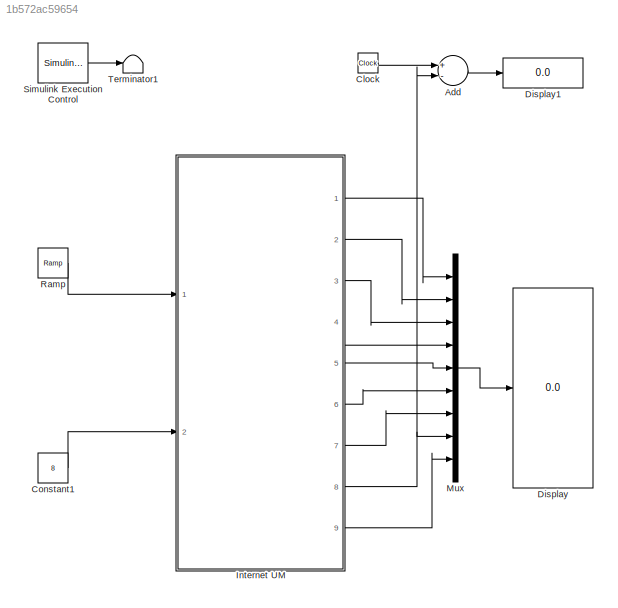
MODEL slx_1b572ac59654
KIND model
BLOCK [Sum] Add
  InputSameDT = off
  Inputs = +-
  OutDataTypeStr = Inherit: Inherit via internal rule
  Ports = [2, 1]
  SaturateOnIntegerOverflow = off
BLOCK [Clock] Clock
BLOCK [Constant] Constant1
  Value = 8
BLOCK [Display] Display
  Decimation = 1
  Ports = [1]
BLOCK [Display] Display1
  Decimation = 1
  Ports = [1]
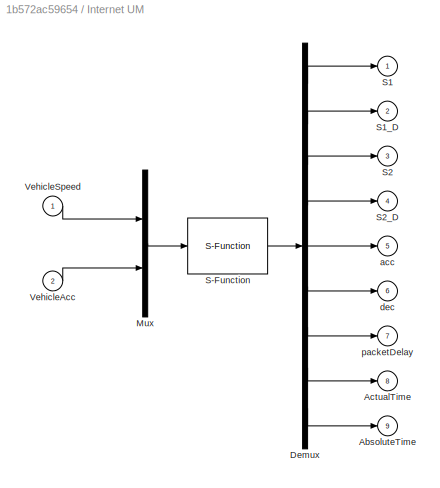
BLOCK [SubSystem] Internet UM
  Ports = [2, 9]
  RequestExecContextInheritance = off
BLOCK [Outport] Internet UM/AbsoluteTime
  IconDisplay = Port number
  Port = 9
BLOCK [Outport] Internet UM/ActualTime
  IconDisplay = Port number
  Port = 8
BLOCK [Demux] Internet UM/Demux
  DisplayOption = bar
  Outputs = 9
  Ports = [1, 9]
BLOCK [Mux] Internet UM/Mux
  DisplayOption = bar
  Inputs = 2
  Ports = [2, 1]
BLOCK [S-Function] Internet UM/S-Function
  EnableBusSupport = off
  FunctionName = InternetUM
  Ports = [1, 1]
BLOCK [Outport] Internet UM/S1
  IconDisplay = Port number
BLOCK [Outport] Internet UM/S1_D
  IconDisplay = Port number
  Port = 2
BLOCK [Outport] Internet UM/S2
  IconDisplay = Port number
  Port = 3
BLOCK [Outport] Internet UM/S2_D
  IconDisplay = Port number
  Port = 4
BLOCK [Inport] Internet UM/VehicleAcc
  IconDisplay = Port number
  Port = 2
BLOCK [Inport] Internet UM/VehicleSpeed
  IconDisplay = Port number
BLOCK [Outport] Internet UM/acc
  IconDisplay = Port number
  Port = 5
BLOCK [Outport] Internet UM/dec
  IconDisplay = Port number
  Port = 6
BLOCK [Outport] Internet UM/packetDelay
  IconDisplay = Port number
  Port = 7
BLOCK [Mux] Mux
  DisplayOption = bar
  Inputs = 9
  Ports = [9, 1]
BLOCK [Reference] Ramp  REF=simulink/Sources/Ramp
  Ports = [0, 1]
  SourceBlock = simulink/Sources/Ramp
  SourceType = Ramp
  VectorParams1D = on
  X0 = 0
  slope = 1
  start = 0
BLOCK [Reference] Simulink Execution Control  REF=SimulinkExecutionControl/Simulink
Execution
Control
  Ports = [0, 1]
  SourceBlock = SimulinkExecutionControl/Simulink\nExecution\nControl
  SourceType = Simulink Execution Control V2.0
  Ts = 4e-3
  factor = 1
  ovrrun = Continue execution
  proc_pri = REALTIME_PRIORITY_CLASS
  rt_sim = on
  thread_pri = THREAD_PRIORITY_TIME_CRITICAL
BLOCK [Terminator] Terminator1
LINE Add:1 -> Display1:1
LINE Clock:1 -> Add:1
LINE Constant1:1 -> Internet UM:2
LINE Internet UM/Demux:1 -> Internet UM/S1:1
LINE Internet UM/Demux:2 -> Internet UM/S1_D:1
LINE Internet UM/Demux:3 -> Internet UM/S2:1
LINE Internet UM/Demux:4 -> Internet UM/S2_D:1
LINE Internet UM/Demux:5 -> Internet UM/acc:1
LINE Internet UM/Demux:6 -> Internet UM/dec:1
LINE Internet UM/Demux:7 -> Internet UM/packetDelay:1
LINE Internet UM/Demux:8 -> Internet UM/ActualTime:1
LINE Internet UM/Demux:9 -> Internet UM/AbsoluteTime:1
LINE Internet UM/Mux:1 -> Internet UM/S-Function:1
LINE Internet UM/S-Function:1 -> Internet UM/Demux:1
LINE Internet UM/VehicleAcc:1 -> Internet UM/Mux:2
LINE Internet UM/VehicleSpeed:1 -> Internet UM/Mux:1
LINE Internet UM:1 -> Mux:1
LINE Internet UM:2 -> Mux:2
LINE Internet UM:3 -> Mux:3
LINE Internet UM:4 -> Mux:4
LINE Internet UM:5 -> Mux:5
LINE Internet UM:6 -> Mux:6
LINE Internet UM:7 -> Mux:7
NET Internet UM:8 -> Add:2, Mux:8
LINE Internet UM:9 -> Mux:9
LINE Mux:1 -> Display:1
LINE Ramp:1 -> Internet UM:1
LINE Simulink Execution Control:1 -> Terminator1:1
note: NET lines group one-source signal fan-out (src -> all destinations, sorted); 1:1 wires keep LINE
